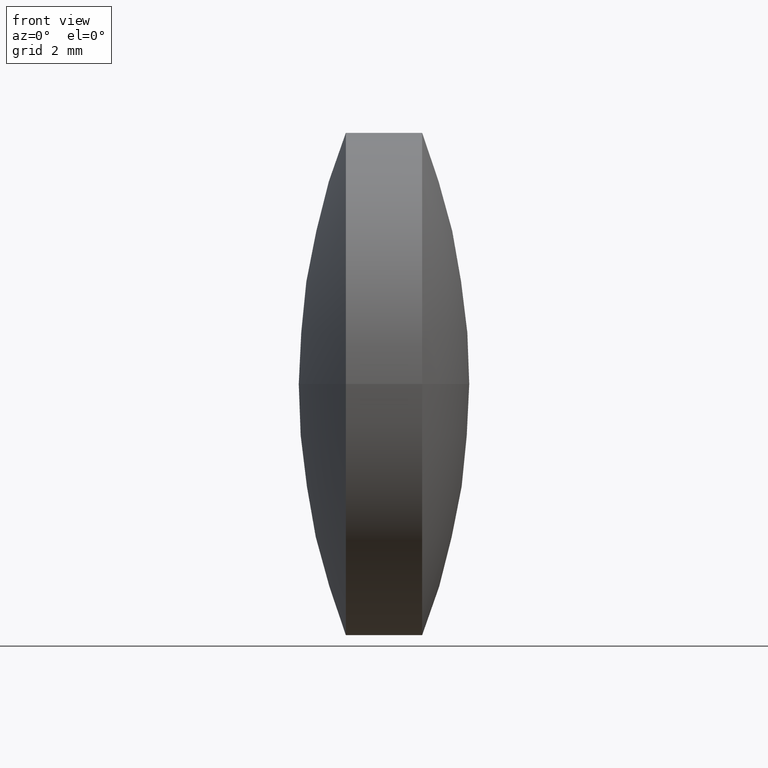
[diagram: clean part render]
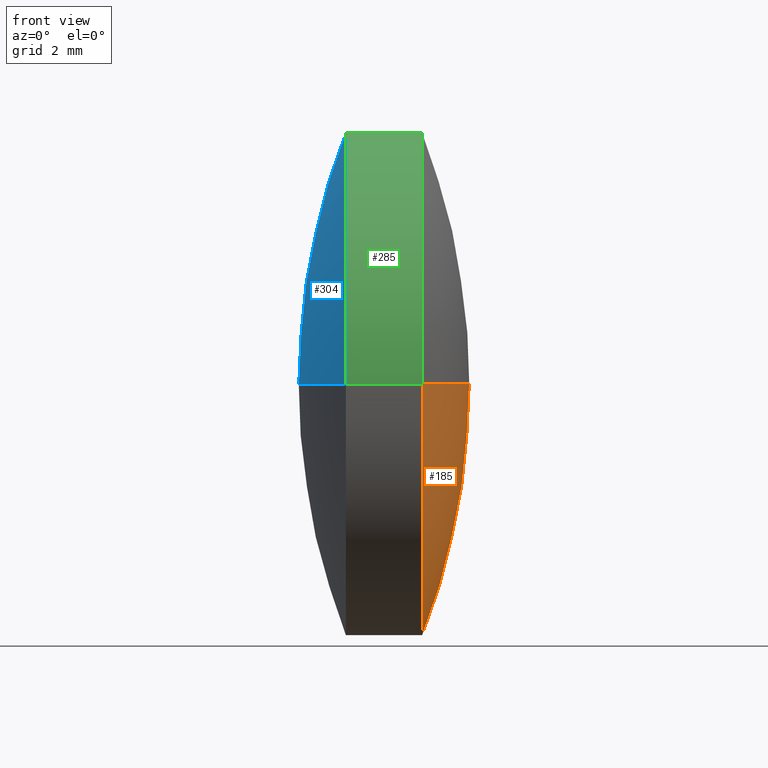
[diagram: same view with three faces highlighted in distinct colors, each labeled with its STEP entity id]
A machine part, front view with three faces highlighted in distinct colors.
Their STEP definitions:

[orange] entity #185 — the highlighted spherical surface has radius 17.9944 mm.
#3 = CARTESIAN_POINT ( 'NONE',  ( 28.45595245652157200, 24.88233366330319300, 0.0000000000000000000 ) ) ;
#4 = CIRCLE ( 'NONE', #180, 17.99443062946765100 ) ;
#13 = DIRECTION ( 'NONE',  ( 0.0000000000000000000, 0.0000000000000000000, -1.000000000000000000 ) ) ;
#17 = CARTESIAN_POINT ( 'NONE',  ( 28.45595245652157200, 24.88233366330319300, 0.0000000000000000000 ) ) ;
#20 = DIRECTION ( 'NONE',  ( -0.0000000000000000000, 0.0000000000000000000, 1.000000000000000000 ) ) ;
#27 = CIRCLE ( 'NONE', #69, 17.99443062946765100 ) ;
#36 = AXIS2_PLACEMENT_3D ( 'NONE', #17, #20, #103 ) ;
#44 = CARTESIAN_POINT ( 'NONE',  ( 45.23538308598923400, 31.38235223478481800, 7.960226937963231700E-016 ) ) ;
#54 = SPHERICAL_SURFACE ( 'NONE', #36, 17.99443062946765100 ) ;
#59 = ORIENTED_EDGE ( 'NONE', *, *, #265, .T. ) ;
#64 = DIRECTION ( 'NONE',  ( 4.270076355997599800E-015, -1.000000000000000000, 0.0000000000000000000 ) ) ;
#69 = AXIS2_PLACEMENT_3D ( 'NONE', #148, #13, #81 ) ;
#81 = DIRECTION ( 'NONE',  ( -1.000000000000000000, 0.0000000000000000000, 0.0000000000000000000 ) ) ;
#91 = EDGE_LOOP ( 'NONE', ( #193, #59, #187 ) ) ;
#103 = DIRECTION ( 'NONE',  ( 4.434554309501586900E-015, -1.000000000000000000, 0.0000000000000000000 ) ) ;
#109 = DIRECTION ( 'NONE',  ( 0.0000000000000000000, -1.000000000000000000, -1.224646799147353200E-016 ) ) ;
#110 = FACE_OUTER_BOUND ( 'NONE', #91, .T. ) ;
#112 = VERTEX_POINT ( 'NONE', #294 ) ;
#113 = EDGE_CURVE ( 'NONE', #178, #230, #4, .T. ) ;
#148 = CARTESIAN_POINT ( 'NONE',  ( 28.45595245652157200, 24.88233366330319300, 0.0000000000000000000 ) ) ;
#158 = AXIS2_PLACEMENT_3D ( 'NONE', #301, #198, #64 ) ;
#162 = EDGE_CURVE ( 'NONE', #230, #112, #167, .T. ) ;
#167 = CIRCLE ( 'NONE', #158, 6.500018571481608600 ) ;
#178 = VERTEX_POINT ( 'NONE', #221 ) ;
#180 = AXIS2_PLACEMENT_3D ( 'NONE', #3, #255, #109 ) ;
#185 = ADVANCED_FACE ( 'NONE', ( #110 ), #54, .T. ) ;
#187 = ORIENTED_EDGE ( 'NONE', *, *, #162, .F. ) ;
#193 = ORIENTED_EDGE ( 'NONE', *, *, #113, .F. ) ;
#198 = DIRECTION ( 'NONE',  ( -1.000000000000000000, -4.344046041914963800E-015, -0.0000000000000000000 ) ) ;
#221 = CARTESIAN_POINT ( 'NONE',  ( 46.45038308598923000, 24.88233366330327100, 0.0000000000000000000 ) ) ;
#230 = VERTEX_POINT ( 'NONE', #44 ) ;
#255 = DIRECTION ( 'NONE',  ( 5.319922080579889100E-031, -1.224646799147353200E-016, 1.000000000000000000 ) ) ;
#265 = EDGE_CURVE ( 'NONE', #178, #112, #27, .T. ) ;
#294 = CARTESIAN_POINT ( 'NONE',  ( 45.23538308598929100, 18.38231509182166000, 0.0000000000000000000 ) ) ;
#301 = CARTESIAN_POINT ( 'NONE',  ( 45.23538308598926200, 24.88233366330321100, 0.0000000000000000000 ) ) ;

[blue] entity #304 — the highlighted spherical surface has radius 17.9944 mm.
#22 = CARTESIAN_POINT ( 'NONE',  ( 60.04481371545662700, 24.88233366330322100, 0.0000000000000000000 ) ) ;
#35 = DIRECTION ( 'NONE',  ( -0.0000000000000000000, 0.0000000000000000000, -1.000000000000000000 ) ) ;
#39 = ORIENTED_EDGE ( 'NONE', *, *, #89, .F. ) ;
#46 = VERTEX_POINT ( 'NONE', #224 ) ;
#58 = DIRECTION ( 'NONE',  ( -4.241747600392880700E-015, 1.000000000000000000, 0.0000000000000000000 ) ) ;
#65 = CARTESIAN_POINT ( 'NONE',  ( 42.05038308598922500, 24.88233366330314300, 0.0000000000000000000 ) ) ;
#89 = EDGE_CURVE ( 'NONE', #249, #254, #124, .T. ) ;
#111 = DIRECTION ( 'NONE',  ( 4.270076355997595100E-015, -1.000000000000000000, 0.0000000000000000000 ) ) ;
#115 = EDGE_LOOP ( 'NONE', ( #39, #238, #297 ) ) ;
#121 = DIRECTION ( 'NONE',  ( -0.0000000000000000000, 0.0000000000000000000, 1.000000000000000000 ) ) ;
#124 = CIRCLE ( 'NONE', #226, 17.99443062946740600 ) ;
#129 = EDGE_CURVE ( 'NONE', #249, #46, #229, .T. ) ;
#135 = CARTESIAN_POINT ( 'NONE',  ( 43.26538308598926400, 24.88233366330320400, 0.0000000000000000000 ) ) ;
#145 = EDGE_CURVE ( 'NONE', #46, #254, #174, .T. ) ;
#174 = CIRCLE ( 'NONE', #225, 17.99443062946740200 ) ;
#197 = SPHERICAL_SURFACE ( 'NONE', #277, 17.99443062946740200 ) ;
#202 = DIRECTION ( 'NONE',  ( 1.000000000000000000, 0.0000000000000000000, 0.0000000000000000000 ) ) ;
#206 = FACE_OUTER_BOUND ( 'NONE', #115, .T. ) ;
#217 = CARTESIAN_POINT ( 'NONE',  ( 60.04481371545662700, 24.88233366330322100, 0.0000000000000000000 ) ) ;
#224 = CARTESIAN_POINT ( 'NONE',  ( 43.26538308598923500, 31.38235223478483200, 0.0000000000000000000 ) ) ;
#225 = AXIS2_PLACEMENT_3D ( 'NONE', #239, #121, #202 ) ;
#226 = AXIS2_PLACEMENT_3D ( 'NONE', #22, #302, #274 ) ;
#229 = CIRCLE ( 'NONE', #290, 6.500018571481615700 ) ;
#238 = ORIENTED_EDGE ( 'NONE', *, *, #129, .T. ) ;
#239 = CARTESIAN_POINT ( 'NONE',  ( 60.04481371545662700, 24.88233366330322100, 0.0000000000000000000 ) ) ;
#244 = CARTESIAN_POINT ( 'NONE',  ( 43.26538308598929200, 18.38231509182151800, -7.960226937963326300E-016 ) ) ;
#249 = VERTEX_POINT ( 'NONE', #244 ) ;
#254 = VERTEX_POINT ( 'NONE', #65 ) ;
#256 = DIRECTION ( 'NONE',  ( -1.000000000000000000, -4.344046041914963800E-015, -0.0000000000000000000 ) ) ;
#274 = DIRECTION ( 'NONE',  ( 0.0000000000000000000, 1.000000000000000000, 1.224646799147353000E-016 ) ) ;
#277 = AXIS2_PLACEMENT_3D ( 'NONE', #217, #35, #58 ) ;
#290 = AXIS2_PLACEMENT_3D ( 'NONE', #135, #256, #111 ) ;
#297 = ORIENTED_EDGE ( 'NONE', *, *, #145, .T. ) ;
#302 = DIRECTION ( 'NONE',  ( -5.319922080579889100E-031, 1.224646799147353200E-016, -1.000000000000000000 ) ) ;
#304 = ADVANCED_FACE ( 'NONE', ( #206 ), #197, .T. ) ;

[green] entity #285 — the highlighted cylindrical surface (partial cylindrical patch) has radius 6.5 mm, axis along (-1, -0, -0).
#6 = ORIENTED_EDGE ( 'NONE', *, *, #212, .F. ) ;
#38 = CARTESIAN_POINT ( 'NONE',  ( 40.95996140012911700, 24.88233366330319300, 0.0000000000000000000 ) ) ;
#44 = CARTESIAN_POINT ( 'NONE',  ( 45.23538308598923400, 31.38235223478481800, 7.960226937963231700E-016 ) ) ;
#46 = VERTEX_POINT ( 'NONE', #224 ) ;
#57 = EDGE_CURVE ( 'NONE', #230, #46, #211, .T. ) ;
#63 = CIRCLE ( 'NONE', #280, 6.500018571481608600 ) ;
#71 = FACE_OUTER_BOUND ( 'NONE', #151, .T. ) ;
#73 = EDGE_CURVE ( 'NONE', #112, #230, #63, .T. ) ;
#106 = DIRECTION ( 'NONE',  ( -1.000000000000000000, -4.344046041914963800E-015, -0.0000000000000000000 ) ) ;
#111 = DIRECTION ( 'NONE',  ( 4.270076355997595100E-015, -1.000000000000000000, 0.0000000000000000000 ) ) ;
#112 = VERTEX_POINT ( 'NONE', #294 ) ;
#117 = VECTOR ( 'NONE', #204, 1000.000000000000000 ) ;
#129 = EDGE_CURVE ( 'NONE', #249, #46, #229, .T. ) ;
#132 = VECTOR ( 'NONE', #200, 1000.000000000000000 ) ;
#135 = CARTESIAN_POINT ( 'NONE',  ( 43.26538308598926400, 24.88233366330320400, 0.0000000000000000000 ) ) ;
#147 = AXIS2_PLACEMENT_3D ( 'NONE', #38, #267, #169 ) ;
#149 = LINE ( 'NONE', #272, #132 ) ;
#151 = EDGE_LOOP ( 'NONE', ( #164, #183, #159, #6 ) ) ;
#159 = ORIENTED_EDGE ( 'NONE', *, *, #129, .F. ) ;
#164 = ORIENTED_EDGE ( 'NONE', *, *, #73, .T. ) ;
#169 = DIRECTION ( 'NONE',  ( 4.270076355997597500E-015, -1.000000000000000000, 0.0000000000000000000 ) ) ;
#183 = ORIENTED_EDGE ( 'NONE', *, *, #57, .T. ) ;
#200 = DIRECTION ( 'NONE',  ( -1.000000000000000000, -4.344046041914963800E-015, -0.0000000000000000000 ) ) ;
#204 = DIRECTION ( 'NONE',  ( -1.000000000000000000, -4.344046041914963800E-015, -0.0000000000000000000 ) ) ;
#205 = CARTESIAN_POINT ( 'NONE',  ( 45.23538308598926200, 24.88233366330321100, 0.0000000000000000000 ) ) ;
#211 = LINE ( 'NONE', #252, #117 ) ;
#212 = EDGE_CURVE ( 'NONE', #112, #249, #149, .T. ) ;
#224 = CARTESIAN_POINT ( 'NONE',  ( 43.26538308598923500, 31.38235223478483200, 0.0000000000000000000 ) ) ;
#229 = CIRCLE ( 'NONE', #290, 6.500018571481615700 ) ;
#230 = VERTEX_POINT ( 'NONE', #44 ) ;
#244 = CARTESIAN_POINT ( 'NONE',  ( 43.26538308598929200, 18.38231509182151800, -7.960226937963326300E-016 ) ) ;
#249 = VERTEX_POINT ( 'NONE', #244 ) ;
#252 = CARTESIAN_POINT ( 'NONE',  ( 40.95996140012909600, 31.38235223478480400, 7.960226937963307600E-016 ) ) ;
#256 = DIRECTION ( 'NONE',  ( -1.000000000000000000, -4.344046041914963800E-015, -0.0000000000000000000 ) ) ;
#261 = CYLINDRICAL_SURFACE ( 'NONE', #147, 6.500018571481612100 ) ;
#267 = DIRECTION ( 'NONE',  ( -1.000000000000000000, -4.344046041914963800E-015, -0.0000000000000000000 ) ) ;
#272 = CARTESIAN_POINT ( 'NONE',  ( 40.95996140012914600, 18.38231509182158200, 0.0000000000000000000 ) ) ;
#276 = DIRECTION ( 'NONE',  ( 4.270076355997599800E-015, -1.000000000000000000, 0.0000000000000000000 ) ) ;
#280 = AXIS2_PLACEMENT_3D ( 'NONE', #205, #106, #276 ) ;
#285 = ADVANCED_FACE ( 'NONE', ( #71 ), #261, .T. ) ;
#290 = AXIS2_PLACEMENT_3D ( 'NONE', #135, #256, #111 ) ;
#294 = CARTESIAN_POINT ( 'NONE',  ( 45.23538308598929100, 18.38231509182166000, 0.0000000000000000000 ) ) ;